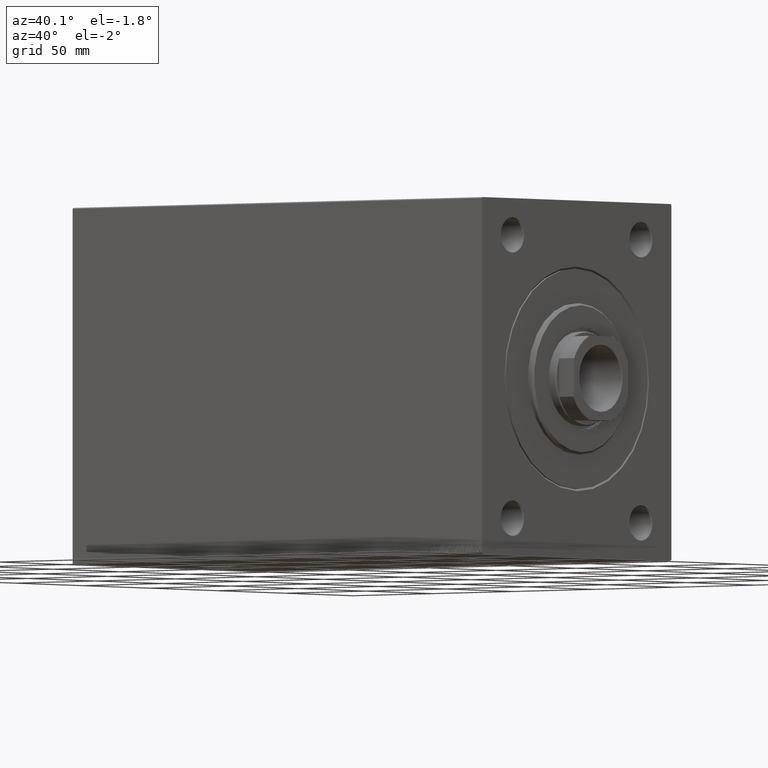
[diagram: clean part render]
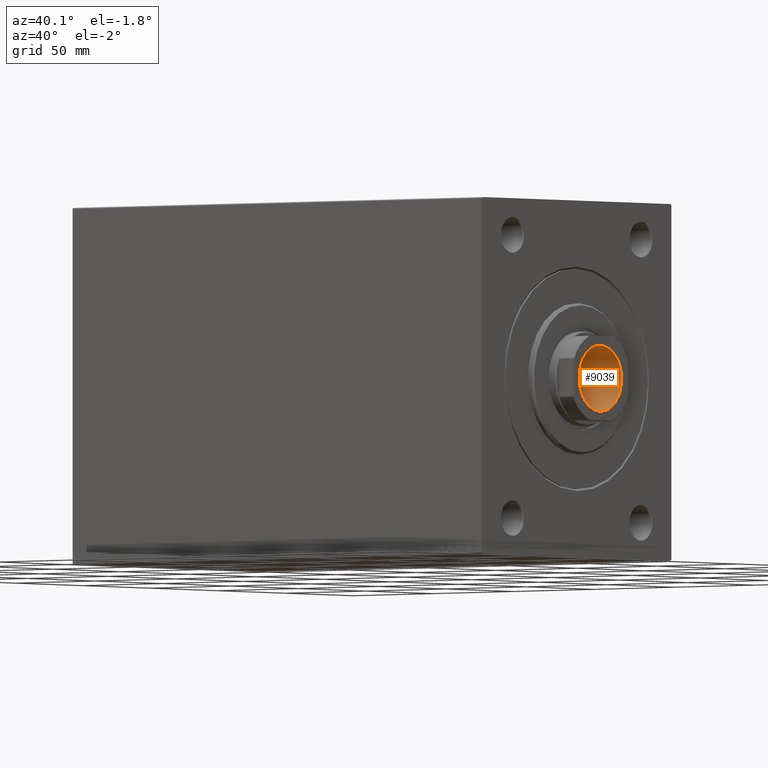
[diagram: same view with one face highlighted and labeled with its STEP entity id]
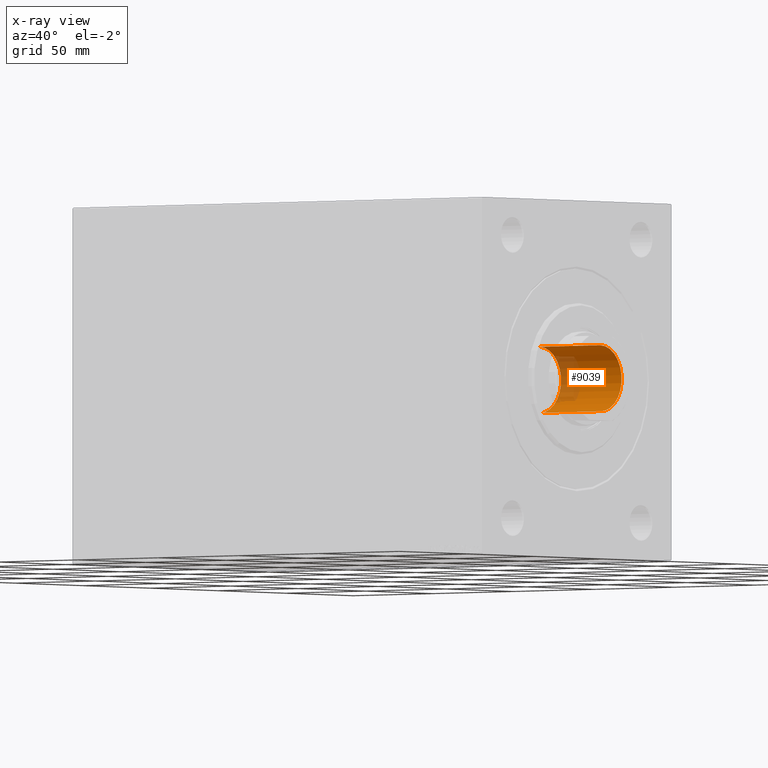
[diagram: x-ray of the same camera — body ghosted, the highlighted face saturated]
A machine part, auxiliary view. The second image highlights one B-rep face of the part: STEP entity #9039.
The next image is the same camera in x-ray: the body ghosted, the highlighted face saturated — about 22% of this face is hidden behind the body in this view.
In plain terms, the highlighted cylindrical surface (edge-blend (fillet) strip) has radius 15.75 mm, axis along (1, 0, 0).
Its self-contained STEP definition (entity closure, byte-faithful):
#358 = AXIS2_PLACEMENT_3D ( 'NONE', #31802, #10880, #11336 ) ;
#1429 = LINE ( 'NONE', #25260, #24291 ) ;
#1871 = CARTESIAN_POINT ( 'NONE',  ( 15.74999999999999289, 0.000000000000000000, 243.7000000000000171 ) ) ;
#3406 = VERTEX_POINT ( 'NONE', #6928 ) ;
#4161 = CYLINDRICAL_SURFACE ( 'NONE', #25526, 15.74999999999999289 ) ;
#4982 = EDGE_LOOP ( 'NONE', ( #38203, #42111, #21779, #38265 ) ) ;
#6120 = VECTOR ( 'NONE', #30719, 1000.000000000000000 ) ;
#6928 = CARTESIAN_POINT ( 'NONE',  ( -15.74999999999999289, 1.928818708657080556E-15, 243.7000000000000171 ) ) ;
#7777 = DIRECTION ( 'NONE',  ( -0.000000000000000000, -0.000000000000000000, 1.000000000000000000 ) ) ;
#9039 = ADVANCED_FACE ( 'NONE', ( #28013 ), #4161, .F. ) ;
#10880 = DIRECTION ( 'NONE',  ( -0.000000000000000000, -0.000000000000000000, 1.000000000000000000 ) ) ;
#10956 = CARTESIAN_POINT ( 'NONE',  ( 0.000000000000000000, 0.000000000000000000, 244.0000000000000000 ) ) ;
#11336 = DIRECTION ( 'NONE',  ( 1.000000000000000000, 0.000000000000000000, 0.000000000000000000 ) ) ;
#12253 = DIRECTION ( 'NONE',  ( 0.000000000000000000, 0.000000000000000000, 1.000000000000000000 ) ) ;
#17754 = CIRCLE ( 'NONE', #358, 15.74999999999999289 ) ;
#21778 = EDGE_CURVE ( 'NONE', #42914, #38028, #17754, .T. ) ;
#21779 = ORIENTED_EDGE ( 'NONE', *, *, #26160, .T. ) ;
#23980 = EDGE_CURVE ( 'NONE', #38028, #3406, #26633, .T. ) ;
#24291 = VECTOR ( 'NONE', #7777, 1000.000000000000000 ) ;
#25260 = CARTESIAN_POINT ( 'NONE',  ( 15.74999999999999289, 0.000000000000000000, 244.0000000000000000 ) ) ;
#25293 = VERTEX_POINT ( 'NONE', #1871 ) ;
#25526 = AXIS2_PLACEMENT_3D ( 'NONE', #10956, #35305, #38726 ) ;
#26160 = EDGE_CURVE ( 'NONE', #42914, #25293, #1429, .T. ) ;
#26511 = EDGE_CURVE ( 'NONE', #25293, #3406, #33061, .T. ) ;
#26633 = LINE ( 'NONE', #44183, #6120 ) ;
#28013 = FACE_OUTER_BOUND ( 'NONE', #4982, .T. ) ;
#29528 = CARTESIAN_POINT ( 'NONE',  ( 0.000000000000000000, 0.000000000000000000, 243.7000000000000171 ) ) ;
#30719 = DIRECTION ( 'NONE',  ( -0.000000000000000000, -0.000000000000000000, 1.000000000000000000 ) ) ;
#31385 = CARTESIAN_POINT ( 'NONE',  ( 15.74999999999999289, 0.000000000000000000, 206.0000000000000000 ) ) ;
#31802 = CARTESIAN_POINT ( 'NONE',  ( 0.000000000000000000, 0.000000000000000000, 206.0000000000000000 ) ) ;
#33061 = CIRCLE ( 'NONE', #38885, 15.74999999999999289 ) ;
#33085 = CARTESIAN_POINT ( 'NONE',  ( -15.74999999999999289, 1.928818708657080556E-15, 206.0000000000000000 ) ) ;
#35305 = DIRECTION ( 'NONE',  ( -0.000000000000000000, -0.000000000000000000, 1.000000000000000000 ) ) ;
#37268 = DIRECTION ( 'NONE',  ( 1.000000000000000000, 0.000000000000000000, 0.000000000000000000 ) ) ;
#38028 = VERTEX_POINT ( 'NONE', #33085 ) ;
#38203 = ORIENTED_EDGE ( 'NONE', *, *, #23980, .F. ) ;
#38265 = ORIENTED_EDGE ( 'NONE', *, *, #26511, .T. ) ;
#38726 = DIRECTION ( 'NONE',  ( 1.000000000000000000, 0.000000000000000000, 0.000000000000000000 ) ) ;
#38885 = AXIS2_PLACEMENT_3D ( 'NONE', #29528, #12253, #37268 ) ;
#42111 = ORIENTED_EDGE ( 'NONE', *, *, #21778, .F. ) ;
#42914 = VERTEX_POINT ( 'NONE', #31385 ) ;
#44183 = CARTESIAN_POINT ( 'NONE',  ( -15.74999999999999289, 1.928818708657080556E-15, 244.0000000000000000 ) ) ;